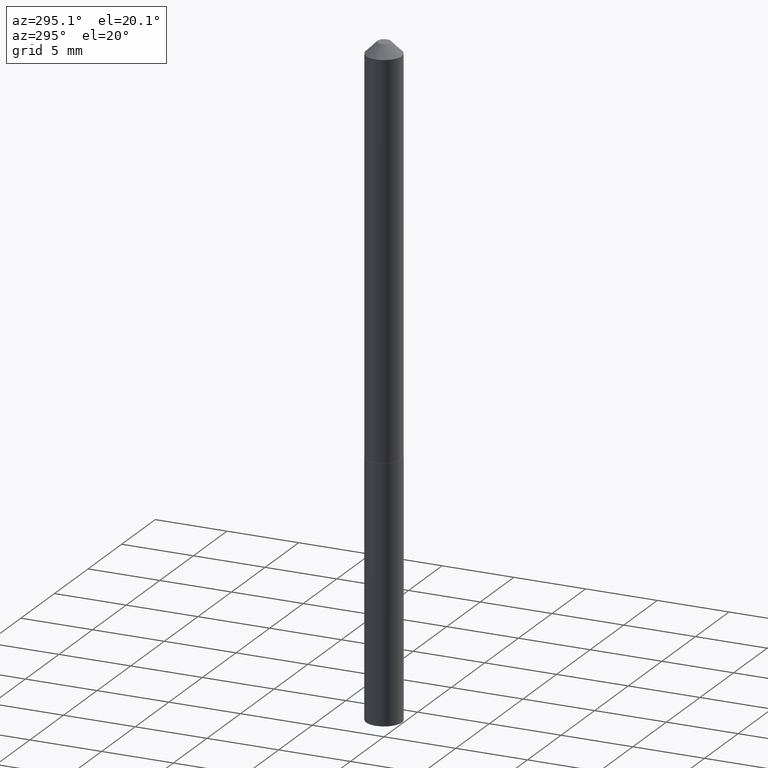
[diagram: clean part render]
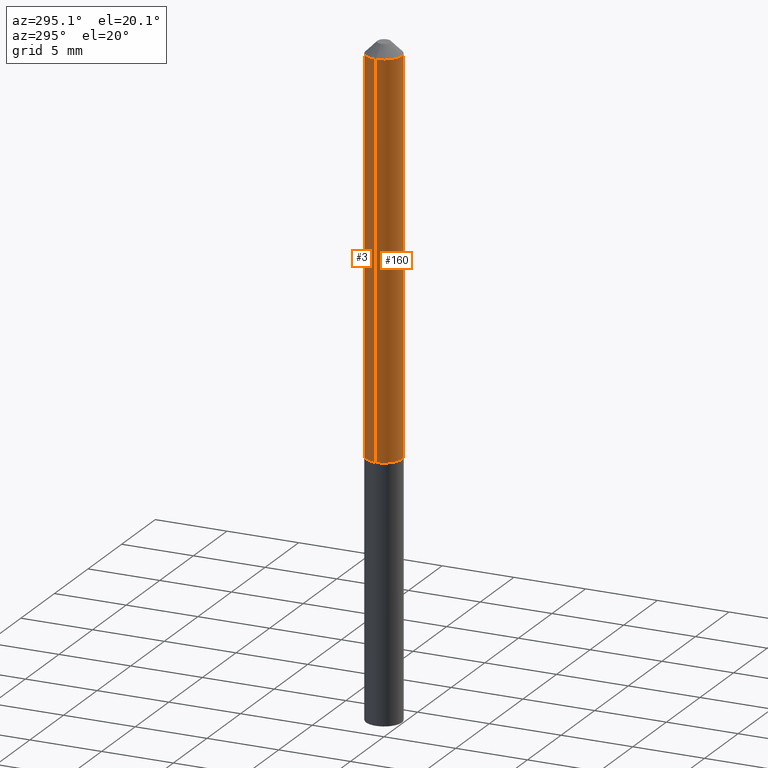
[diagram: same view with one multi-face feature highlighted, each face labeled with its STEP entity id]
A machine part, auxiliary view. The highlighted faces form ONE feature: a constant-radius fillet chain: 2 tangent blend faces with common blend radius 1.2446 mm. The faces share edges in the B-rep.
Their STEP definitions:
[1] entity #160 (Cylinder):
#6 = CARTESIAN_POINT ( 'NONE',  ( 0.04900000000000000883, -4.512739630454761261E-16, -0.03125000000000020123 ) ) ;
#8 = DIRECTION ( 'NONE',  ( -2.445468806185136597E-29, 3.491481338843145583E-15, 1.000000000000000000 ) ) ;
#10 = DIRECTION ( 'NONE',  ( -2.445468806185136597E-29, 3.491481338843145583E-15, 1.000000000000000000 ) ) ;
#24 = AXIS2_PLACEMENT_3D ( 'NONE', #67, #214, #128 ) ;
#33 = AXIS2_PLACEMENT_3D ( 'NONE', #372, #10, #314 ) ;
#36 = CARTESIAN_POINT ( 'NONE',  ( 0.04900000000000014067, -4.174065940586980694E-15, -1.097500000000000142 ) ) ;
#51 = VERTEX_POINT ( 'NONE', #151 ) ;
#62 = EDGE_CURVE ( 'NONE', #51, #66, #144, .T. ) ;
#63 = ORIENTED_EDGE ( 'NONE', *, *, #201, .T. ) ;
#66 = VERTEX_POINT ( 'NONE', #351 ) ;
#67 = CARTESIAN_POINT ( 'NONE',  ( 2.683902014788188043E-29, -3.831900769380352584E-15, -1.097500000000000142 ) ) ;
#68 = CARTESIAN_POINT ( 'NONE',  ( 0.04900000000000007822, -3.421651712066276171E-16, 2.389326620140012644E-30 ) ) ;
#72 = VERTEX_POINT ( 'NONE', #36 ) ;
#73 = FACE_OUTER_BOUND ( 'NONE', #338, .T. ) ;
#86 = EDGE_CURVE ( 'NONE', #51, #72, #308, .T. ) ;
#96 = VERTEX_POINT ( 'NONE', #6 ) ;
#98 = EDGE_CURVE ( 'NONE', #66, #96, #257, .T. ) ;
#128 = DIRECTION ( 'NONE',  ( 1.000000000000000000, -6.982962677686262766E-15, 0.000000000000000000 ) ) ;
#144 = LINE ( 'NONE', #211, #196 ) ;
#151 = CARTESIAN_POINT ( 'NONE',  ( -0.04900000000000014067, -3.483734828857902394E-15, -1.097500000000000142 ) ) ;
#160 = ADVANCED_FACE ( 'NONE', ( #73 ), #217, .T. ) ;
#162 = ORIENTED_EDGE ( 'NONE', *, *, #98, .F. ) ;
#191 = DIRECTION ( 'NONE',  ( -2.445468806185136877E-29, 3.491481338843145188E-15, 1.000000000000000000 ) ) ;
#196 = VECTOR ( 'NONE', #231, 39.37007874015748143 ) ;
#201 = EDGE_CURVE ( 'NONE', #72, #96, #277, .T. ) ;
#211 = CARTESIAN_POINT ( 'NONE',  ( -0.04900000000000007822, 3.481659405224496468E-16, -2.410278194224907734E-30 ) ) ;
#214 = DIRECTION ( 'NONE',  ( -2.445468806185136597E-29, 3.491481338843145583E-15, 1.000000000000000000 ) ) ;
#217 = CYLINDRICAL_SURFACE ( 'NONE', #33, 0.04900000000000007822 ) ;
#231 = DIRECTION ( 'NONE',  ( -2.445468806185136877E-29, 3.491481338843145188E-15, 1.000000000000000000 ) ) ;
#241 = CARTESIAN_POINT ( 'NONE',  ( 7.642090019328601786E-31, -1.091087918388490144E-16, -0.03125000000000020123 ) ) ;
#257 = CIRCLE ( 'NONE', #362, 0.04900000000000000883 ) ;
#277 = LINE ( 'NONE', #68, #346 ) ;
#300 = ORIENTED_EDGE ( 'NONE', *, *, #62, .F. ) ;
#308 = CIRCLE ( 'NONE', #24, 0.04900000000000014067 ) ;
#314 = DIRECTION ( 'NONE',  ( 1.000000000000000000, -6.982962677686266711E-15, 4.876176775795936353E-29 ) ) ;
#338 = EDGE_LOOP ( 'NONE', ( #300, #348, #63, #162 ) ) ;
#346 = VECTOR ( 'NONE', #191, 39.37007874015748143 ) ;
#348 = ORIENTED_EDGE ( 'NONE', *, *, #86, .T. ) ;
#351 = CARTESIAN_POINT ( 'NONE',  ( -0.04900000000000000883, -1.622338840087150061E-15, -0.03125000000000020123 ) ) ;
#362 = AXIS2_PLACEMENT_3D ( 'NONE', #241, #8, #366 ) ;
#366 = DIRECTION ( 'NONE',  ( 1.000000000000000000, -6.982962677686267499E-15, 0.000000000000000000 ) ) ;
#372 = CARTESIAN_POINT ( 'NONE',  ( 0.000000000000000000, 0.000000000000000000, 0.000000000000000000 ) ) ;
[2] entity #3 (Cylinder):
#3 = ADVANCED_FACE ( 'NONE', ( #141 ), #42, .T. ) ;
#6 = CARTESIAN_POINT ( 'NONE',  ( 0.04900000000000000883, -4.512739630454761261E-16, -0.03125000000000020123 ) ) ;
#36 = CARTESIAN_POINT ( 'NONE',  ( 0.04900000000000014067, -4.174065940586980694E-15, -1.097500000000000142 ) ) ;
#39 = DIRECTION ( 'NONE',  ( -2.445468806185136597E-29, 3.491481338843145583E-15, 1.000000000000000000 ) ) ;
#42 = CYLINDRICAL_SURFACE ( 'NONE', #364, 0.04900000000000007822 ) ;
#43 = CARTESIAN_POINT ( 'NONE',  ( 7.642090019328601786E-31, -1.091087918388490144E-16, -0.03125000000000020123 ) ) ;
#51 = VERTEX_POINT ( 'NONE', #151 ) ;
#61 = ORIENTED_EDGE ( 'NONE', *, *, #62, .T. ) ;
#62 = EDGE_CURVE ( 'NONE', #51, #66, #144, .T. ) ;
#66 = VERTEX_POINT ( 'NONE', #351 ) ;
#68 = CARTESIAN_POINT ( 'NONE',  ( 0.04900000000000007822, -3.421651712066276171E-16, 2.389326620140012644E-30 ) ) ;
#69 = DIRECTION ( 'NONE',  ( -2.445468806185136597E-29, 3.491481338843145583E-15, 1.000000000000000000 ) ) ;
#72 = VERTEX_POINT ( 'NONE', #36 ) ;
#75 = CIRCLE ( 'NONE', #121, 0.04900000000000014067 ) ;
#77 = ORIENTED_EDGE ( 'NONE', *, *, #114, .F. ) ;
#79 = ORIENTED_EDGE ( 'NONE', *, *, #108, .T. ) ;
#96 = VERTEX_POINT ( 'NONE', #6 ) ;
#108 = EDGE_CURVE ( 'NONE', #72, #51, #75, .T. ) ;
#114 = EDGE_CURVE ( 'NONE', #96, #66, #166, .T. ) ;
#121 = AXIS2_PLACEMENT_3D ( 'NONE', #156, #242, #367 ) ;
#124 = AXIS2_PLACEMENT_3D ( 'NONE', #43, #39, #275 ) ;
#133 = CARTESIAN_POINT ( 'NONE',  ( 0.000000000000000000, 0.000000000000000000, 0.000000000000000000 ) ) ;
#141 = FACE_OUTER_BOUND ( 'NONE', #342, .T. ) ;
#144 = LINE ( 'NONE', #211, #196 ) ;
#151 = CARTESIAN_POINT ( 'NONE',  ( -0.04900000000000014067, -3.483734828857902394E-15, -1.097500000000000142 ) ) ;
#156 = CARTESIAN_POINT ( 'NONE',  ( 2.683902014788188043E-29, -3.831900769380352584E-15, -1.097500000000000142 ) ) ;
#166 = CIRCLE ( 'NONE', #124, 0.04900000000000000883 ) ;
#191 = DIRECTION ( 'NONE',  ( -2.445468806185136877E-29, 3.491481338843145188E-15, 1.000000000000000000 ) ) ;
#192 = DIRECTION ( 'NONE',  ( 1.000000000000000000, -6.982962677686266711E-15, 4.876176775795936353E-29 ) ) ;
#196 = VECTOR ( 'NONE', #231, 39.37007874015748143 ) ;
#201 = EDGE_CURVE ( 'NONE', #72, #96, #277, .T. ) ;
#211 = CARTESIAN_POINT ( 'NONE',  ( -0.04900000000000007822, 3.481659405224496468E-16, -2.410278194224907734E-30 ) ) ;
#231 = DIRECTION ( 'NONE',  ( -2.445468806185136877E-29, 3.491481338843145188E-15, 1.000000000000000000 ) ) ;
#242 = DIRECTION ( 'NONE',  ( -2.445468806185136597E-29, 3.491481338843145583E-15, 1.000000000000000000 ) ) ;
#243 = ORIENTED_EDGE ( 'NONE', *, *, #201, .F. ) ;
#275 = DIRECTION ( 'NONE',  ( 1.000000000000000000, -6.982962677686267499E-15, 0.000000000000000000 ) ) ;
#277 = LINE ( 'NONE', #68, #346 ) ;
#342 = EDGE_LOOP ( 'NONE', ( #79, #61, #77, #243 ) ) ;
#346 = VECTOR ( 'NONE', #191, 39.37007874015748143 ) ;
#351 = CARTESIAN_POINT ( 'NONE',  ( -0.04900000000000000883, -1.622338840087150061E-15, -0.03125000000000020123 ) ) ;
#364 = AXIS2_PLACEMENT_3D ( 'NONE', #133, #69, #192 ) ;
#367 = DIRECTION ( 'NONE',  ( 1.000000000000000000, -6.982962677686262766E-15, 0.000000000000000000 ) ) ;